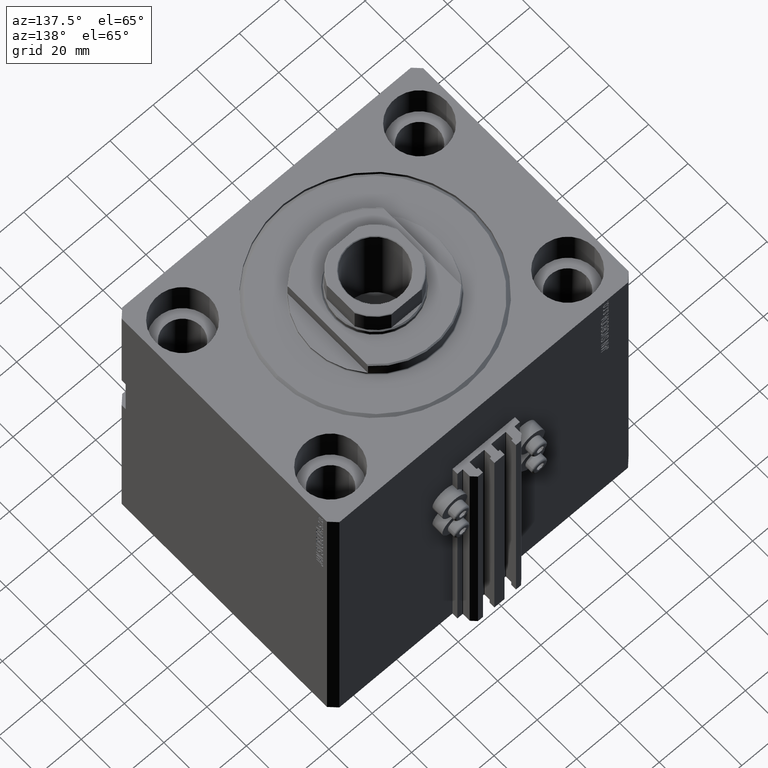
[diagram: clean part render]
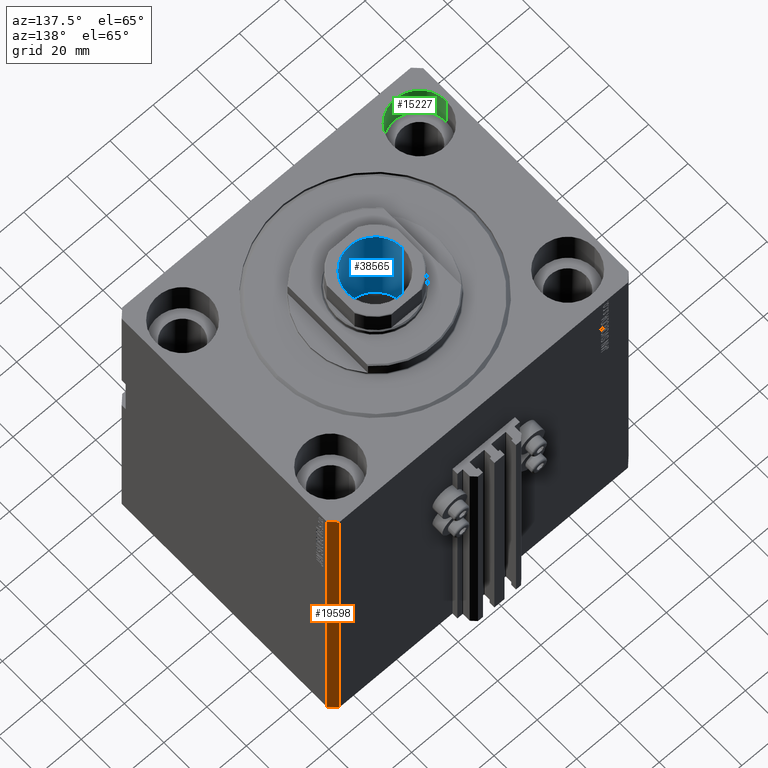
[diagram: same view with three faces highlighted in distinct colors, each labeled with its STEP entity id]
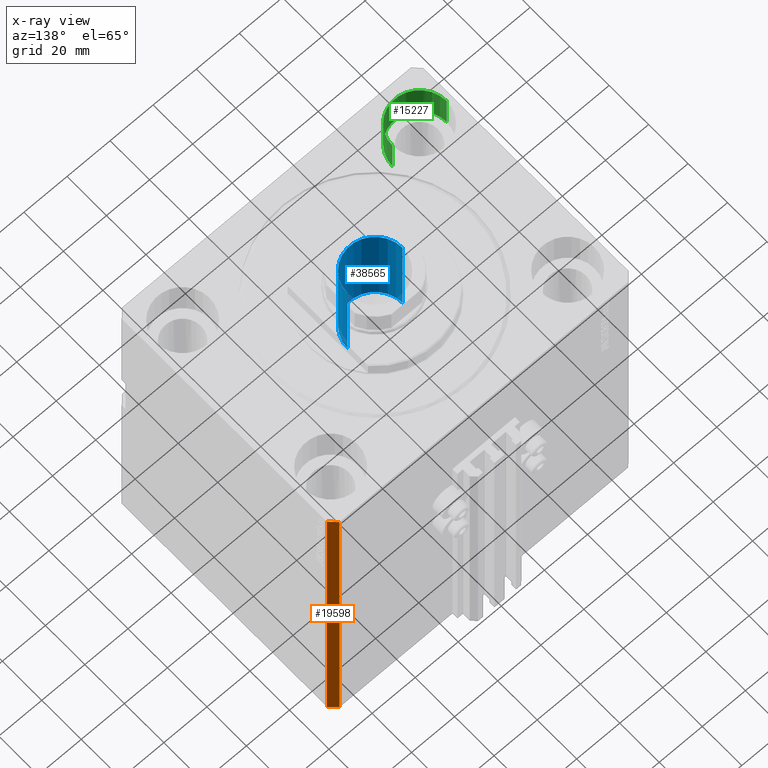
[diagram: x-ray of the same camera — body ghosted, the three highlighted faces saturated]
A machine part, auxiliary view with three faces highlighted in distinct colors.
The next image is the same camera in x-ray (body ghosted, the three faces saturated) — at least one of them is partly hidden behind the body in this view.
Their STEP definitions:

[orange] entity #19598 — the highlighted planar face has unit normal (0.7071, 0.7071, 0).
#3208 = EDGE_CURVE ( 'NONE', #9388, #42661, #38328, .T. ) ;
#4524 = DIRECTION ( 'NONE',  ( -0.7071067811865344721, 0.7071067811865606734, 0.000000000000000000 ) ) ;
#5907 = CARTESIAN_POINT ( 'NONE',  ( 70.00000000000056843, 51.99999999999996447, -150.0000000000000000 ) ) ;
#8945 = ORIENTED_EDGE ( 'NONE', *, *, #3208, .T. ) ;
#9388 = VERTEX_POINT ( 'NONE', #39986 ) ;
#11490 = CARTESIAN_POINT ( 'NONE',  ( 67.00000000000061107, 55.00000000000002132, 0.000000000000000000 ) ) ;
#11603 = CARTESIAN_POINT ( 'NONE',  ( 70.00000000000056843, 51.99999999999996447, -150.0000000000000000 ) ) ;
#12049 = VERTEX_POINT ( 'NONE', #11490 ) ;
#13310 = LINE ( 'NONE', #5907, #38035 ) ;
#18531 = ORIENTED_EDGE ( 'NONE', *, *, #48624, .T. ) ;
#18909 = CARTESIAN_POINT ( 'NONE',  ( 67.00000000000061107, 55.00000000000002132, -150.0000000000000000 ) ) ;
#19123 = CARTESIAN_POINT ( 'NONE',  ( 70.00000000000056843, 51.99999999999996447, -150.0000000000000000 ) ) ;
#19416 = CARTESIAN_POINT ( 'NONE',  ( 70.00000000000056843, 51.99999999999996447, 0.000000000000000000 ) ) ;
#19598 = ADVANCED_FACE ( 'NONE', ( #37764 ), #26897, .T. ) ;
#21776 = VECTOR ( 'NONE', #27288, 1000.000000000000000 ) ;
#22361 = EDGE_CURVE ( 'NONE', #37498, #12049, #38395, .T. ) ;
#24118 = EDGE_LOOP ( 'NONE', ( #36196, #28080, #8945, #18531 ) ) ;
#26897 = PLANE ( 'NONE',  #30291 ) ;
#27288 = DIRECTION ( 'NONE',  ( -0.7071067811865344721, 0.7071067811865606734, 0.000000000000000000 ) ) ;
#28080 = ORIENTED_EDGE ( 'NONE', *, *, #41920, .F. ) ;
#30291 = AXIS2_PLACEMENT_3D ( 'NONE', #11603, #38480, #42426 ) ;
#31326 = DIRECTION ( 'NONE',  ( 0.000000000000000000, 0.000000000000000000, 1.000000000000000000 ) ) ;
#35313 = VECTOR ( 'NONE', #37404, 1000.000000000000000 ) ;
#36196 = ORIENTED_EDGE ( 'NONE', *, *, #22361, .F. ) ;
#37404 = DIRECTION ( 'NONE',  ( 0.000000000000000000, 0.000000000000000000, 1.000000000000000000 ) ) ;
#37498 = VERTEX_POINT ( 'NONE', #43978 ) ;
#37764 = FACE_OUTER_BOUND ( 'NONE', #24118, .T. ) ;
#38035 = VECTOR ( 'NONE', #31326, 1000.000000000000000 ) ;
#38328 = LINE ( 'NONE', #19123, #46238 ) ;
#38395 = LINE ( 'NONE', #19416, #21776 ) ;
#38480 = DIRECTION ( 'NONE',  ( 0.7071067811865606734, 0.7071067811865344721, -0.000000000000000000 ) ) ;
#39986 = CARTESIAN_POINT ( 'NONE',  ( 70.00000000000056843, 51.99999999999996447, -150.0000000000000000 ) ) ;
#41920 = EDGE_CURVE ( 'NONE', #9388, #37498, #13310, .T. ) ;
#42426 = DIRECTION ( 'NONE',  ( -0.7071067811865344721, 0.7071067811865606734, 0.000000000000000000 ) ) ;
#42661 = VERTEX_POINT ( 'NONE', #45597 ) ;
#43978 = CARTESIAN_POINT ( 'NONE',  ( 70.00000000000056843, 51.99999999999996447, 0.000000000000000000 ) ) ;
#44814 = LINE ( 'NONE', #18909, #35313 ) ;
#45597 = CARTESIAN_POINT ( 'NONE',  ( 67.00000000000061107, 55.00000000000002132, -150.0000000000000000 ) ) ;
#46238 = VECTOR ( 'NONE', #4524, 1000.000000000000000 ) ;
#48624 = EDGE_CURVE ( 'NONE', #42661, #12049, #44814, .T. ) ;

[blue] entity #38565 — the highlighted cylindrical surface (partial cylindrical patch) has radius 12.75 mm, axis along (0, 0, 1).
#908 = AXIS2_PLACEMENT_3D ( 'NONE', #26016, #22314, #20070 ) ;
#1320 = VECTOR ( 'NONE', #3628, 1000.000000000000000 ) ;
#2664 = CARTESIAN_POINT ( 'NONE',  ( 12.74999999999999467, 0.000000000000000000, 145.0000000000000284 ) ) ;
#2812 = EDGE_CURVE ( 'NONE', #34733, #15966, #36456, .T. ) ;
#3628 = DIRECTION ( 'NONE',  ( -0.000000000000000000, -0.000000000000000000, 1.000000000000000000 ) ) ;
#7823 = DIRECTION ( 'NONE',  ( -0.000000000000000000, -0.000000000000000000, 1.000000000000000000 ) ) ;
#8218 = AXIS2_PLACEMENT_3D ( 'NONE', #19227, #45855, #34740 ) ;
#9470 = CARTESIAN_POINT ( 'NONE',  ( 12.74999999999999112, 0.000000000000000000, 100.0000000000000142 ) ) ;
#9472 = ORIENTED_EDGE ( 'NONE', *, *, #45915, .F. ) ;
#10959 = FACE_OUTER_BOUND ( 'NONE', #22700, .T. ) ;
#14598 = ORIENTED_EDGE ( 'NONE', *, *, #27113, .T. ) ;
#15966 = VERTEX_POINT ( 'NONE', #40550 ) ;
#16886 = CARTESIAN_POINT ( 'NONE',  ( -12.74999999999999112, 1.561424668912874125E-15, 100.0000000000000142 ) ) ;
#18999 = DIRECTION ( 'NONE',  ( 0.000000000000000000, 0.000000000000000000, 1.000000000000000000 ) ) ;
#19227 = CARTESIAN_POINT ( 'NONE',  ( 0.000000000000000000, 0.000000000000000000, 100.0000000000000142 ) ) ;
#20070 = DIRECTION ( 'NONE',  ( 1.000000000000000000, 0.000000000000000000, 0.000000000000000000 ) ) ;
#22314 = DIRECTION ( 'NONE',  ( -0.000000000000000000, -0.000000000000000000, 1.000000000000000000 ) ) ;
#22700 = EDGE_LOOP ( 'NONE', ( #9472, #14598, #39274, #41183 ) ) ;
#26016 = CARTESIAN_POINT ( 'NONE',  ( 0.000000000000000000, 0.000000000000000000, 145.0000000000000284 ) ) ;
#26621 = DIRECTION ( 'NONE',  ( 1.000000000000000000, 0.000000000000000000, 0.000000000000000000 ) ) ;
#27113 = EDGE_CURVE ( 'NONE', #34674, #27979, #37449, .T. ) ;
#27979 = VERTEX_POINT ( 'NONE', #39761 ) ;
#33906 = CYLINDRICAL_SURFACE ( 'NONE', #908, 12.74999999999999467 ) ;
#34254 = CIRCLE ( 'NONE', #8218, 12.74999999999999112 ) ;
#34288 = CIRCLE ( 'NONE', #40608, 12.74999999999999467 ) ;
#34456 = CARTESIAN_POINT ( 'NONE',  ( -12.74999999999999467, 1.561424668912874519E-15, 145.0000000000000284 ) ) ;
#34674 = VERTEX_POINT ( 'NONE', #16886 ) ;
#34733 = VERTEX_POINT ( 'NONE', #9470 ) ;
#34740 = DIRECTION ( 'NONE',  ( 1.000000000000000000, 0.000000000000000000, 0.000000000000000000 ) ) ;
#35281 = VECTOR ( 'NONE', #7823, 1000.000000000000000 ) ;
#36456 = LINE ( 'NONE', #2664, #1320 ) ;
#37449 = LINE ( 'NONE', #34456, #35281 ) ;
#38565 = ADVANCED_FACE ( 'NONE', ( #10959 ), #33906, .F. ) ;
#39274 = ORIENTED_EDGE ( 'NONE', *, *, #46782, .T. ) ;
#39761 = CARTESIAN_POINT ( 'NONE',  ( -12.74999999999999467, 1.561424668912874519E-15, 144.6999999999999602 ) ) ;
#40550 = CARTESIAN_POINT ( 'NONE',  ( 12.74999999999999467, 0.000000000000000000, 144.6999999999999602 ) ) ;
#40608 = AXIS2_PLACEMENT_3D ( 'NONE', #48599, #18999, #26621 ) ;
#41183 = ORIENTED_EDGE ( 'NONE', *, *, #2812, .F. ) ;
#45855 = DIRECTION ( 'NONE',  ( -0.000000000000000000, -0.000000000000000000, 1.000000000000000000 ) ) ;
#45915 = EDGE_CURVE ( 'NONE', #34674, #34733, #34254, .T. ) ;
#46782 = EDGE_CURVE ( 'NONE', #27979, #15966, #34288, .T. ) ;
#48599 = CARTESIAN_POINT ( 'NONE',  ( 0.000000000000000000, 0.000000000000000000, 144.6999999999999602 ) ) ;

[green] entity #15227 — the highlighted cylindrical surface (edge-blend (fillet) strip) has radius 12.5 mm, axis along (0, 0, 1).
#2268 = LINE ( 'NONE', #48404, #40994 ) ;
#2437 = DIRECTION ( 'NONE',  ( -0.000000000000000000, -0.000000000000000000, 1.000000000000000000 ) ) ;
#4718 = ORIENTED_EDGE ( 'NONE', *, *, #14581, .T. ) ;
#5717 = VERTEX_POINT ( 'NONE', #19959 ) ;
#8511 = CIRCLE ( 'NONE', #36098, 12.49999999999999645 ) ;
#9124 = VERTEX_POINT ( 'NONE', #17727 ) ;
#9521 = EDGE_CURVE ( 'NONE', #26785, #9124, #24805, .T. ) ;
#10321 = AXIS2_PLACEMENT_3D ( 'NONE', #24796, #39852, #24299 ) ;
#13161 = CARTESIAN_POINT ( 'NONE',  ( -55.00000000000000711, -37.50000000000000711, 0.000000000000000000 ) ) ;
#13655 = DIRECTION ( 'NONE',  ( 1.000000000000000000, 0.000000000000000000, 0.000000000000000000 ) ) ;
#14581 = EDGE_CURVE ( 'NONE', #5717, #29748, #2268, .T. ) ;
#14591 = DIRECTION ( 'NONE',  ( -0.000000000000000000, -0.000000000000000000, 1.000000000000000000 ) ) ;
#15227 = ADVANCED_FACE ( 'NONE', ( #24387 ), #44136, .F. ) ;
#15826 = ORIENTED_EDGE ( 'NONE', *, *, #34136, .F. ) ;
#16068 = CARTESIAN_POINT ( 'NONE',  ( -67.50000000000000000, -37.50000000000000711, 0.000000000000000000 ) ) ;
#16506 = VECTOR ( 'NONE', #45630, 1000.000000000000000 ) ;
#16996 = EDGE_LOOP ( 'NONE', ( #15826, #4718, #45233, #48425 ) ) ;
#17727 = CARTESIAN_POINT ( 'NONE',  ( -42.50000000000000711, -37.50000000000000711, 0.000000000000000000 ) ) ;
#18241 = CIRCLE ( 'NONE', #10321, 12.49999999999999645 ) ;
#19959 = CARTESIAN_POINT ( 'NONE',  ( -67.50000000000000000, -37.50000000000000711, -17.00000000000000000 ) ) ;
#24299 = DIRECTION ( 'NONE',  ( 1.000000000000000000, 0.000000000000000000, 0.000000000000000000 ) ) ;
#24387 = FACE_OUTER_BOUND ( 'NONE', #16996, .T. ) ;
#24796 = CARTESIAN_POINT ( 'NONE',  ( -55.00000000000000711, -37.50000000000000711, -17.00000000000000000 ) ) ;
#24805 = LINE ( 'NONE', #30567, #16506 ) ;
#25137 = DIRECTION ( 'NONE',  ( 1.000000000000000000, 0.000000000000000000, 0.000000000000000000 ) ) ;
#26785 = VERTEX_POINT ( 'NONE', #35788 ) ;
#27580 = EDGE_CURVE ( 'NONE', #29748, #9124, #8511, .T. ) ;
#29748 = VERTEX_POINT ( 'NONE', #16068 ) ;
#30567 = CARTESIAN_POINT ( 'NONE',  ( -42.50000000000000711, -37.50000000000000711, -17.00000000000000000 ) ) ;
#34136 = EDGE_CURVE ( 'NONE', #5717, #26785, #18241, .T. ) ;
#35788 = CARTESIAN_POINT ( 'NONE',  ( -42.50000000000000711, -37.50000000000000711, -17.00000000000000000 ) ) ;
#35854 = DIRECTION ( 'NONE',  ( 0.000000000000000000, 0.000000000000000000, 1.000000000000000000 ) ) ;
#36098 = AXIS2_PLACEMENT_3D ( 'NONE', #13161, #35854, #13655 ) ;
#39852 = DIRECTION ( 'NONE',  ( 0.000000000000000000, 0.000000000000000000, 1.000000000000000000 ) ) ;
#40994 = VECTOR ( 'NONE', #14591, 1000.000000000000000 ) ;
#43396 = CARTESIAN_POINT ( 'NONE',  ( -55.00000000000000711, -37.50000000000000711, -17.00000000000000000 ) ) ;
#44136 = CYLINDRICAL_SURFACE ( 'NONE', #48120, 12.49999999999999645 ) ;
#45233 = ORIENTED_EDGE ( 'NONE', *, *, #27580, .T. ) ;
#45630 = DIRECTION ( 'NONE',  ( -0.000000000000000000, -0.000000000000000000, 1.000000000000000000 ) ) ;
#48120 = AXIS2_PLACEMENT_3D ( 'NONE', #43396, #2437, #25137 ) ;
#48404 = CARTESIAN_POINT ( 'NONE',  ( -67.50000000000000000, -37.50000000000000711, -17.00000000000000000 ) ) ;
#48425 = ORIENTED_EDGE ( 'NONE', *, *, #9521, .F. ) ;